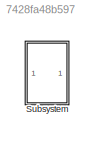
MODEL slx_7428fa48b597
KIND model
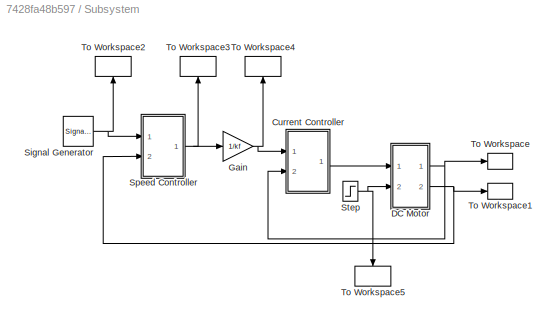
BLOCK [SubSystem] Subsystem
  FunctionWithSeparateData = off
  MaskHideContents = off
  MinAlgLoopOccurrences = off
  Opaque = off
  Ports = []
  PropExecContextOutsideSubsystem = off
  RTWSystemCode = Auto
  RequestExecContextInheritance = off
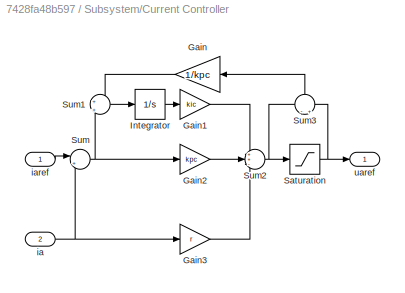
BLOCK [SubSystem] Subsystem/Current Controller
  FunctionWithSeparateData = off
  MaskHideContents = off
  MinAlgLoopOccurrences = off
  Opaque = off
  Ports = [2, 1]
  PropExecContextOutsideSubsystem = off
  RTWSystemCode = Auto
  RequestExecContextInheritance = off
BLOCK [Gain] Subsystem/Current Controller/Gain
  Gain = 1/kpc
  OutDataTypeStr = Inherit: Inherit via internal rule
  ParamDataTypeStr = Inherit: Inherit via internal rule
  SaturateOnIntegerOverflow = off
BLOCK [Gain] Subsystem/Current Controller/Gain1
  Gain = kic
  OutDataTypeStr = Inherit: Inherit via internal rule
  ParamDataTypeStr = Inherit: Inherit via internal rule
  SaturateOnIntegerOverflow = off
BLOCK [Gain] Subsystem/Current Controller/Gain2
  Gain = kpc
  OutDataTypeStr = Inherit: Inherit via internal rule
  ParamDataTypeStr = Inherit: Inherit via internal rule
  SaturateOnIntegerOverflow = off
BLOCK [Gain] Subsystem/Current Controller/Gain3
  Gain = r
  OutDataTypeStr = Inherit: Inherit via internal rule
  ParamDataTypeStr = Inherit: Inherit via internal rule
  SaturateOnIntegerOverflow = off
BLOCK [Integrator] Subsystem/Current Controller/Integrator
  Ports = [1, 1]
BLOCK [Saturate] Subsystem/Current Controller/Saturation
  InputPortMap = u0
  LowerLimit = Umin
  Ports = [1, 1]
  UpperLimit = Umax
BLOCK [Sum] Subsystem/Current Controller/Sum
  IconShape = round
  InputSameDT = off
  Inputs = |+-
  OutDataTypeStr = Inherit: Inherit via internal rule
  Ports = [2, 1]
  SaturateOnIntegerOverflow = off
BLOCK [Sum] Subsystem/Current Controller/Sum1
  IconShape = round
  InputSameDT = off
  Inputs = +|+
  OutDataTypeStr = Inherit: Inherit via internal rule
  Ports = [2, 1]
  SaturateOnIntegerOverflow = off
BLOCK [Sum] Subsystem/Current Controller/Sum2
  IconShape = round
  InputSameDT = off
  Inputs = ++-
  OutDataTypeStr = Inherit: Inherit via internal rule
  Ports = [3, 1]
  SaturateOnIntegerOverflow = off
BLOCK [Sum] Subsystem/Current Controller/Sum3
  IconShape = round
  InputSameDT = off
  Inputs = -|+
  OutDataTypeStr = Inherit: Inherit via internal rule
  Ports = [2, 1]
  SaturateOnIntegerOverflow = off
BLOCK [Inport] Subsystem/Current Controller/ia
  IconDisplay = Port number
  Port = 2
BLOCK [Inport] Subsystem/Current Controller/iaref
  IconDisplay = Port number
BLOCK [Outport] Subsystem/Current Controller/uaref
  IconDisplay = Port number
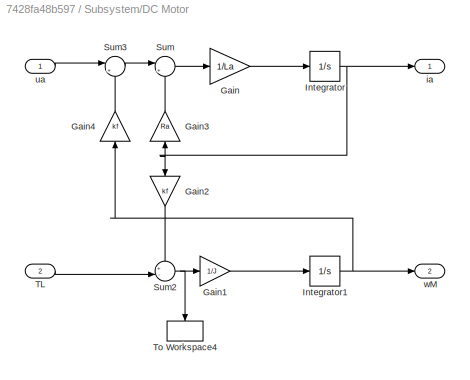
BLOCK [SubSystem] Subsystem/DC Motor
  FunctionWithSeparateData = off
  MaskHideContents = off
  MinAlgLoopOccurrences = off
  Opaque = off
  Ports = [2, 2]
  PropExecContextOutsideSubsystem = off
  RTWSystemCode = Auto
  RequestExecContextInheritance = off
BLOCK [Gain] Subsystem/DC Motor/Gain
  Gain = 1/La
  OutDataTypeStr = Inherit: Inherit via internal rule
  ParamDataTypeStr = Inherit: Inherit via internal rule
  SaturateOnIntegerOverflow = off
BLOCK [Gain] Subsystem/DC Motor/Gain1
  Gain = 1/J
  OutDataTypeStr = Inherit: Inherit via internal rule
  ParamDataTypeStr = Inherit: Inherit via internal rule
  SaturateOnIntegerOverflow = off
BLOCK [Gain] Subsystem/DC Motor/Gain2
  Gain = kf
  OutDataTypeStr = Inherit: Inherit via internal rule
  ParamDataTypeStr = Inherit: Inherit via internal rule
  SaturateOnIntegerOverflow = off
BLOCK [Gain] Subsystem/DC Motor/Gain3
  Gain = Ra
  OutDataTypeStr = Inherit: Inherit via internal rule
  ParamDataTypeStr = Inherit: Inherit via internal rule
  SaturateOnIntegerOverflow = off
BLOCK [Gain] Subsystem/DC Motor/Gain4
  Gain = kf
  OutDataTypeStr = Inherit: Inherit via internal rule
  ParamDataTypeStr = Inherit: Inherit via internal rule
  SaturateOnIntegerOverflow = off
BLOCK [Integrator] Subsystem/DC Motor/Integrator
  Ports = [1, 1]
BLOCK [Integrator] Subsystem/DC Motor/Integrator1
  Ports = [1, 1]
BLOCK [Sum] Subsystem/DC Motor/Sum
  IconShape = round
  InputSameDT = off
  Inputs = |+-
  OutDataTypeStr = Inherit: Inherit via internal rule
  Ports = [2, 1]
  SaturateOnIntegerOverflow = off
BLOCK [Sum] Subsystem/DC Motor/Sum2
  IconShape = round
  InputSameDT = off
  Inputs = +-|
  OutDataTypeStr = Inherit: Inherit via internal rule
  Ports = [2, 1]
  SaturateOnIntegerOverflow = off
BLOCK [Sum] Subsystem/DC Motor/Sum3
  IconShape = round
  InputSameDT = off
  Inputs = |+-
  OutDataTypeStr = Inherit: Inherit via internal rule
  Ports = [2, 1]
  SaturateOnIntegerOverflow = off
BLOCK [Inport] Subsystem/DC Motor/TL
  IconDisplay = Port number
  Port = 2
BLOCK [ToWorkspace] Subsystem/DC Motor/To Workspace4
  MaxDataPoints = inf
  Ports = [1]
  SampleTime = -1
  SaveFormat = Timeseries
  VariableName = TM
BLOCK [Outport] Subsystem/DC Motor/ia
  IconDisplay = Port number
BLOCK [Inport] Subsystem/DC Motor/ua
  IconDisplay = Port number
BLOCK [Outport] Subsystem/DC Motor/wM
  IconDisplay = Port number
  Port = 2
BLOCK [Gain] Subsystem/Gain
  Gain = 1/kf
  OutDataTypeStr = Inherit: Inherit via internal rule
  ParamDataTypeStr = Inherit: Inherit via internal rule
  SaturateOnIntegerOverflow = off
BLOCK [SignalGenerator] Subsystem/Signal Generator
  Amplitude = 160
  Frequency = 4
  Ports = [0, 1]
  WaveForm = square
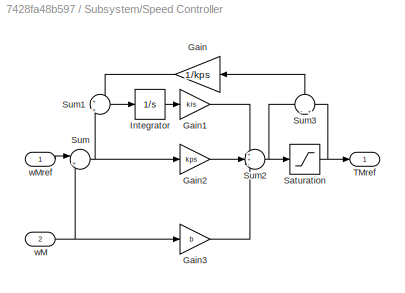
BLOCK [SubSystem] Subsystem/Speed Controller
  FunctionWithSeparateData = off
  MaskHideContents = off
  MinAlgLoopOccurrences = off
  Opaque = off
  Ports = [2, 1]
  PropExecContextOutsideSubsystem = off
  RTWSystemCode = Auto
  RequestExecContextInheritance = off
BLOCK [Gain] Subsystem/Speed Controller/Gain
  Gain = 1/kps
  OutDataTypeStr = Inherit: Inherit via internal rule
  ParamDataTypeStr = Inherit: Inherit via internal rule
  SaturateOnIntegerOverflow = off
BLOCK [Gain] Subsystem/Speed Controller/Gain1
  Gain = kis
  OutDataTypeStr = Inherit: Inherit via internal rule
  ParamDataTypeStr = Inherit: Inherit via internal rule
  SaturateOnIntegerOverflow = off
BLOCK [Gain] Subsystem/Speed Controller/Gain2
  Gain = kps
  OutDataTypeStr = Inherit: Inherit via internal rule
  ParamDataTypeStr = Inherit: Inherit via internal rule
  SaturateOnIntegerOverflow = off
BLOCK [Gain] Subsystem/Speed Controller/Gain3
  Gain = b
  OutDataTypeStr = Inherit: Inherit via internal rule
  ParamDataTypeStr = Inherit: Inherit via internal rule
  SaturateOnIntegerOverflow = off
BLOCK [Integrator] Subsystem/Speed Controller/Integrator
  Ports = [1, 1]
BLOCK [Saturate] Subsystem/Speed Controller/Saturation
  InputPortMap = u0
  LowerLimit = Tmin
  Ports = [1, 1]
  UpperLimit = Tmax
BLOCK [Sum] Subsystem/Speed Controller/Sum
  IconShape = round
  InputSameDT = off
  Inputs = |+-
  OutDataTypeStr = Inherit: Inherit via internal rule
  Ports = [2, 1]
  SaturateOnIntegerOverflow = off
BLOCK [Sum] Subsystem/Speed Controller/Sum1
  IconShape = round
  InputSameDT = off
  Inputs = +|+
  OutDataTypeStr = Inherit: Inherit via internal rule
  Ports = [2, 1]
  SaturateOnIntegerOverflow = off
BLOCK [Sum] Subsystem/Speed Controller/Sum2
  IconShape = round
  InputSameDT = off
  Inputs = ++-
  OutDataTypeStr = Inherit: Inherit via internal rule
  Ports = [3, 1]
  SaturateOnIntegerOverflow = off
BLOCK [Sum] Subsystem/Speed Controller/Sum3
  IconShape = round
  InputSameDT = off
  Inputs = -|+
  OutDataTypeStr = Inherit: Inherit via internal rule
  Ports = [2, 1]
  SaturateOnIntegerOverflow = off
BLOCK [Outport] Subsystem/Speed Controller/TMref
  IconDisplay = Port number
BLOCK [Inport] Subsystem/Speed Controller/wM
  IconDisplay = Port number
  Port = 2
BLOCK [Inport] Subsystem/Speed Controller/wMref
  IconDisplay = Port number
BLOCK [Step] Subsystem/Step
  After = TN
  SampleTime = 0
  Time = 0.3
BLOCK [ToWorkspace] Subsystem/To Workspace
  MaxDataPoints = inf
  Ports = [1]
  SampleTime = -1
  SaveFormat = Timeseries
  VariableName = ia
BLOCK [ToWorkspace] Subsystem/To Workspace1
  MaxDataPoints = inf
  Ports = [1]
  SampleTime = -1
  SaveFormat = Timeseries
  VariableName = wM
BLOCK [ToWorkspace] Subsystem/To Workspace2
  MaxDataPoints = inf
  Ports = [1]
  SampleTime = -1
  SaveFormat = Timeseries
  VariableName = wMref
BLOCK [ToWorkspace] Subsystem/To Workspace3
  MaxDataPoints = inf
  Ports = [1]
  SampleTime = -1
  SaveFormat = Timeseries
  VariableName = TMref
BLOCK [ToWorkspace] Subsystem/To Workspace4
  MaxDataPoints = inf
  Ports = [1]
  SampleTime = -1
  SaveFormat = Timeseries
  VariableName = iaref
BLOCK [ToWorkspace] Subsystem/To Workspace5
  MaxDataPoints = inf
  Ports = [1]
  SampleTime = -1
  SaveFormat = Timeseries
  VariableName = TL
LINE Subsystem/Current Controller/Gain1:1 -> Subsystem/Current Controller/Sum2:1
LINE Subsystem/Current Controller/Gain2:1 -> Subsystem/Current Controller/Sum2:2
LINE Subsystem/Current Controller/Gain3:1 -> Subsystem/Current Controller/Sum2:3
LINE Subsystem/Current Controller/Gain:1 -> Subsystem/Current Controller/Sum1:1
LINE Subsystem/Current Controller/Integrator:1 -> Subsystem/Current Controller/Gain1:1
NET Subsystem/Current Controller/Saturation:1 -> Subsystem/Current Controller/Sum3:2, Subsystem/Current Controller/uaref:1
LINE Subsystem/Current Controller/Sum1:1 -> Subsystem/Current Controller/Integrator:1
NET Subsystem/Current Controller/Sum2:1 -> Subsystem/Current Controller/Saturation:1, Subsystem/Current Controller/Sum3:1
LINE Subsystem/Current Controller/Sum3:1 -> Subsystem/Current Controller/Gain:1
NET Subsystem/Current Controller/Sum:1 -> Subsystem/Current Controller/Gain2:1, Subsystem/Current Controller/Sum1:2
NET Subsystem/Current Controller/ia:1 -> Subsystem/Current Controller/Gain3:1, Subsystem/Current Controller/Sum:2
LINE Subsystem/Current Controller/iaref:1 -> Subsystem/Current Controller/Sum:1
LINE Subsystem/Current Controller:1 -> Subsystem/DC Motor:1
LINE Subsystem/DC Motor/Gain1:1 -> Subsystem/DC Motor/Integrator1:1
LINE Subsystem/DC Motor/Gain2:1 -> Subsystem/DC Motor/Sum2:1
LINE Subsystem/DC Motor/Gain3:1 -> Subsystem/DC Motor/Sum:2
LINE Subsystem/DC Motor/Gain4:1 -> Subsystem/DC Motor/Sum3:2
LINE Subsystem/DC Motor/Gain:1 -> Subsystem/DC Motor/Integrator:1
NET Subsystem/DC Motor/Integrator1:1 -> Subsystem/DC Motor/Gain4:1, Subsystem/DC Motor/wM:1
NET Subsystem/DC Motor/Integrator:1 -> Subsystem/DC Motor/Gain2:1, Subsystem/DC Motor/Gain3:1, Subsystem/DC Motor/ia:1
NET Subsystem/DC Motor/Sum2:1 -> Subsystem/DC Motor/Gain1:1, Subsystem/DC Motor/To Workspace4:1
LINE Subsystem/DC Motor/Sum3:1 -> Subsystem/DC Motor/Sum:1
LINE Subsystem/DC Motor/Sum:1 -> Subsystem/DC Motor/Gain:1
LINE Subsystem/DC Motor/TL:1 -> Subsystem/DC Motor/Sum2:2
LINE Subsystem/DC Motor/ua:1 -> Subsystem/DC Motor/Sum3:1
NET Subsystem/DC Motor:1 -> Subsystem/Current Controller:2, Subsystem/To Workspace:1
NET Subsystem/DC Motor:2 -> Subsystem/Speed Controller:2, Subsystem/To Workspace1:1
NET Subsystem/Gain:1 -> Subsystem/Current Controller:1, Subsystem/To Workspace4:1
NET Subsystem/Signal Generator:1 -> Subsystem/Speed Controller:1, Subsystem/To Workspace2:1
LINE Subsystem/Speed Controller/Gain1:1 -> Subsystem/Speed Controller/Sum2:1
LINE Subsystem/Speed Controller/Gain2:1 -> Subsystem/Speed Controller/Sum2:2
LINE Subsystem/Speed Controller/Gain3:1 -> Subsystem/Speed Controller/Sum2:3
LINE Subsystem/Speed Controller/Gain:1 -> Subsystem/Speed Controller/Sum1:1
LINE Subsystem/Speed Controller/Integrator:1 -> Subsystem/Speed Controller/Gain1:1
NET Subsystem/Speed Controller/Saturation:1 -> Subsystem/Speed Controller/Sum3:2, Subsystem/Speed Controller/TMref:1
LINE Subsystem/Speed Controller/Sum1:1 -> Subsystem/Speed Controller/Integrator:1
NET Subsystem/Speed Controller/Sum2:1 -> Subsystem/Speed Controller/Saturation:1, Subsystem/Speed Controller/Sum3:1
LINE Subsystem/Speed Controller/Sum3:1 -> Subsystem/Speed Controller/Gain:1
NET Subsystem/Speed Controller/Sum:1 -> Subsystem/Speed Controller/Gain2:1, Subsystem/Speed Controller/Sum1:2
NET Subsystem/Speed Controller/wM:1 -> Subsystem/Speed Controller/Gain3:1, Subsystem/Speed Controller/Sum:2
LINE Subsystem/Speed Controller/wMref:1 -> Subsystem/Speed Controller/Sum:1
NET Subsystem/Speed Controller:1 -> Subsystem/Gain:1, Subsystem/To Workspace3:1
NET Subsystem/Step:1 -> Subsystem/DC Motor:2, Subsystem/To Workspace5:1
note: NET lines group one-source signal fan-out (src -> all destinations, sorted); 1:1 wires keep LINE
